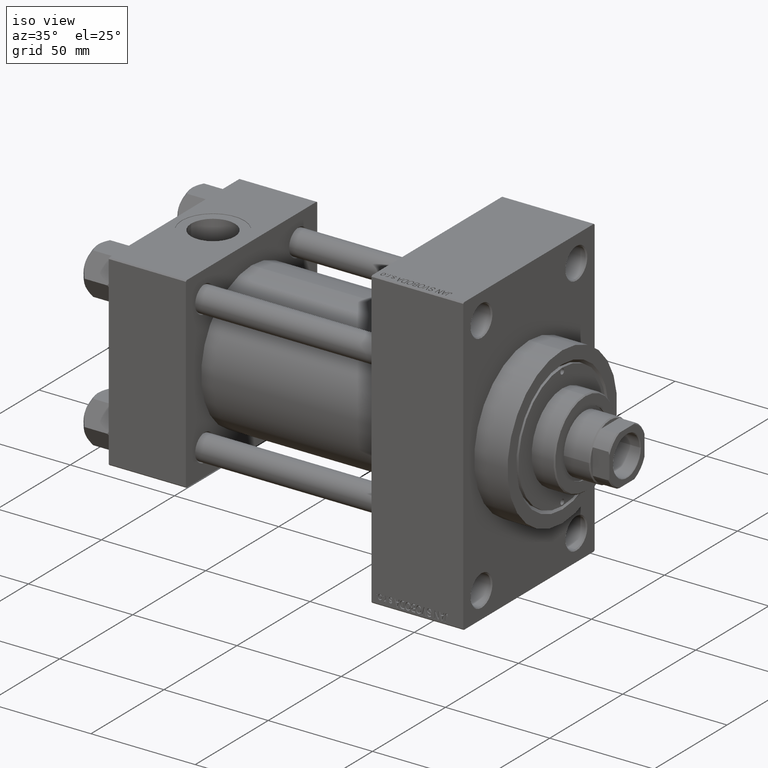
[diagram: clean part render]
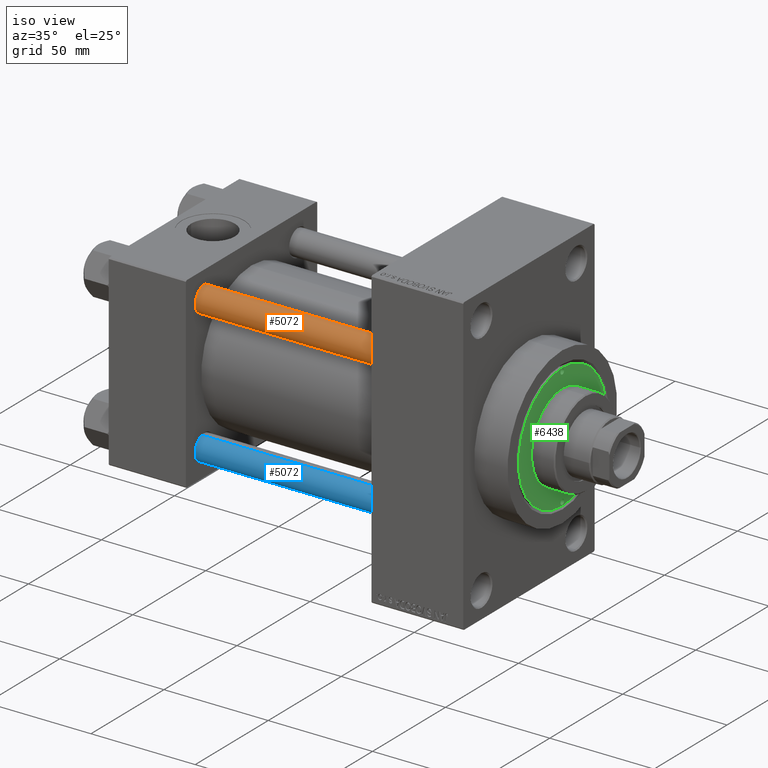
[diagram: same view with three faces highlighted in distinct colors, each labeled with its STEP entity id]
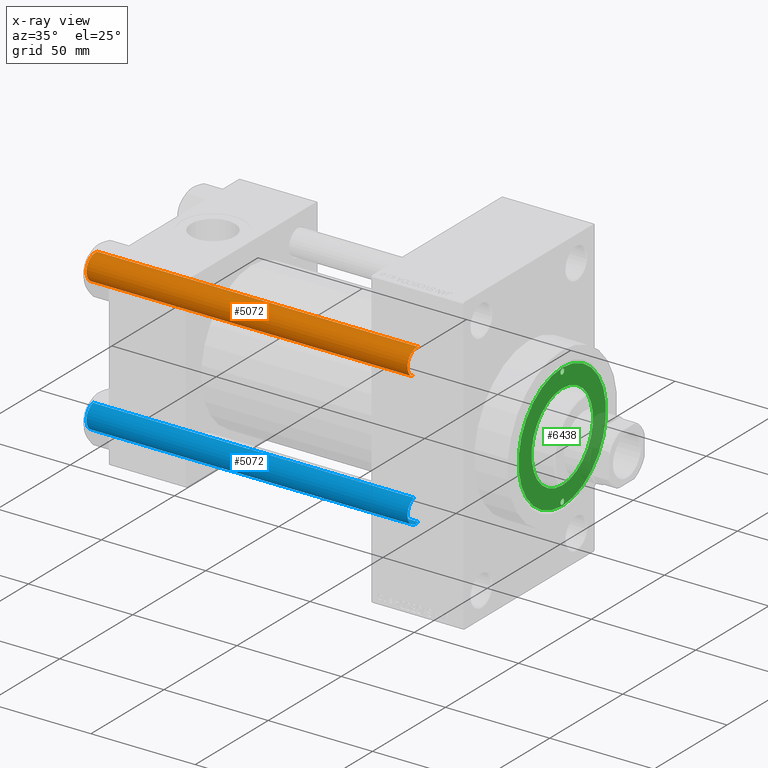
[diagram: x-ray of the same camera — body ghosted, the three highlighted faces saturated]
A machine part, iso view with three faces highlighted in distinct colors.
The next image is the same camera in x-ray (body ghosted, the three faces saturated) — at least one of them is partly hidden behind the body in this view.
Their STEP definitions:

[orange] entity #5072 — the highlighted cylindrical surface (edge-blend (fillet) strip) has radius 6 mm, axis along (1, 0, 0).
#69 = CIRCLE ( 'NONE', #36850, 6.000000000000000888 ) ;
#1149 = EDGE_CURVE ( 'NONE', #29892, #43492, #69, .T. ) ;
#2170 = DIRECTION ( 'NONE',  ( 1.000000000000000000, 0.000000000000000000, 0.000000000000000000 ) ) ;
#3232 = VECTOR ( 'NONE', #4594, 1000.000000000000000 ) ;
#4041 = LINE ( 'NONE', #22520, #36015 ) ;
#4105 = CARTESIAN_POINT ( 'NONE',  ( 0.000000000000000000, 0.000000000000000000, 155.0000000000000000 ) ) ;
#4594 = DIRECTION ( 'NONE',  ( -0.000000000000000000, -0.000000000000000000, -1.000000000000000000 ) ) ;
#5072 = ADVANCED_FACE ( 'NONE', ( #32908 ), #36980, .T. ) ;
#7988 = EDGE_CURVE ( 'NONE', #16860, #15814, #11318, .T. ) ;
#9495 = ORIENTED_EDGE ( 'NONE', *, *, #25648, .F. ) ;
#9819 = CARTESIAN_POINT ( 'NONE',  ( 0.000000000000000000, 0.000000000000000000, 154.5000000000000000 ) ) ;
#10811 = DIRECTION ( 'NONE',  ( -1.000000000000000000, 0.000000000000000000, 0.000000000000000000 ) ) ;
#11318 = CIRCLE ( 'NONE', #33557, 6.000000000000000888 ) ;
#13196 = DIRECTION ( 'NONE',  ( 0.000000000000000000, 0.000000000000000000, -1.000000000000000000 ) ) ;
#15814 = VERTEX_POINT ( 'NONE', #41828 ) ;
#16860 = VERTEX_POINT ( 'NONE', #32662 ) ;
#17356 = EDGE_CURVE ( 'NONE', #15814, #29892, #4041, .T. ) ;
#20880 = AXIS2_PLACEMENT_3D ( 'NONE', #4105, #21639, #10811 ) ;
#21639 = DIRECTION ( 'NONE',  ( -0.000000000000000000, -0.000000000000000000, -1.000000000000000000 ) ) ;
#21969 = EDGE_LOOP ( 'NONE', ( #34572, #23555, #46696, #9495 ) ) ;
#22520 = CARTESIAN_POINT ( 'NONE',  ( 6.000000000000000888, 7.347880794884120722E-16, 155.0000000000000000 ) ) ;
#23555 = ORIENTED_EDGE ( 'NONE', *, *, #17356, .T. ) ;
#25648 = EDGE_CURVE ( 'NONE', #16860, #43492, #45118, .T. ) ;
#29892 = VERTEX_POINT ( 'NONE', #32524 ) ;
#31615 = DIRECTION ( 'NONE',  ( -0.000000000000000000, -0.000000000000000000, 1.000000000000000000 ) ) ;
#32524 = CARTESIAN_POINT ( 'NONE',  ( 6.000000000000000888, 7.347880794884120722E-16, 0.4999999999999726885 ) ) ;
#32662 = CARTESIAN_POINT ( 'NONE',  ( -6.000000000000000888, 0.000000000000000000, 154.5000000000000000 ) ) ;
#32908 = FACE_OUTER_BOUND ( 'NONE', #21969, .T. ) ;
#33557 = AXIS2_PLACEMENT_3D ( 'NONE', #9819, #13196, #2170 ) ;
#34572 = ORIENTED_EDGE ( 'NONE', *, *, #7988, .T. ) ;
#34574 = CARTESIAN_POINT ( 'NONE',  ( -6.000000000000000888, 0.000000000000000000, 155.0000000000000000 ) ) ;
#36015 = VECTOR ( 'NONE', #37157, 1000.000000000000000 ) ;
#36850 = AXIS2_PLACEMENT_3D ( 'NONE', #45981, #31615, #46922 ) ;
#36980 = CYLINDRICAL_SURFACE ( 'NONE', #20880, 6.000000000000000888 ) ;
#37157 = DIRECTION ( 'NONE',  ( -0.000000000000000000, -0.000000000000000000, -1.000000000000000000 ) ) ;
#41828 = CARTESIAN_POINT ( 'NONE',  ( 6.000000000000000888, 7.347880794884120722E-16, 154.5000000000000000 ) ) ;
#43492 = VERTEX_POINT ( 'NONE', #46441 ) ;
#45118 = LINE ( 'NONE', #34574, #3232 ) ;
#45981 = CARTESIAN_POINT ( 'NONE',  ( 0.000000000000000000, 0.000000000000000000, 0.4999999999999726885 ) ) ;
#46441 = CARTESIAN_POINT ( 'NONE',  ( -6.000000000000000888, 0.000000000000000000, 0.4999999999999726885 ) ) ;
#46696 = ORIENTED_EDGE ( 'NONE', *, *, #1149, .T. ) ;
#46922 = DIRECTION ( 'NONE',  ( 1.000000000000000000, 0.000000000000000000, 0.000000000000000000 ) ) ;

[blue] entity #5072 — the highlighted cylindrical surface (edge-blend (fillet) strip) has radius 6 mm, axis along (-1, 0, 0).
#69 = CIRCLE ( 'NONE', #36850, 6.000000000000000888 ) ;
#1149 = EDGE_CURVE ( 'NONE', #29892, #43492, #69, .T. ) ;
#2170 = DIRECTION ( 'NONE',  ( 1.000000000000000000, 0.000000000000000000, 0.000000000000000000 ) ) ;
#3232 = VECTOR ( 'NONE', #4594, 1000.000000000000000 ) ;
#4041 = LINE ( 'NONE', #22520, #36015 ) ;
#4105 = CARTESIAN_POINT ( 'NONE',  ( 0.000000000000000000, 0.000000000000000000, 155.0000000000000000 ) ) ;
#4594 = DIRECTION ( 'NONE',  ( -0.000000000000000000, -0.000000000000000000, -1.000000000000000000 ) ) ;
#5072 = ADVANCED_FACE ( 'NONE', ( #32908 ), #36980, .T. ) ;
#7988 = EDGE_CURVE ( 'NONE', #16860, #15814, #11318, .T. ) ;
#9495 = ORIENTED_EDGE ( 'NONE', *, *, #25648, .F. ) ;
#9819 = CARTESIAN_POINT ( 'NONE',  ( 0.000000000000000000, 0.000000000000000000, 154.5000000000000000 ) ) ;
#10811 = DIRECTION ( 'NONE',  ( -1.000000000000000000, 0.000000000000000000, 0.000000000000000000 ) ) ;
#11318 = CIRCLE ( 'NONE', #33557, 6.000000000000000888 ) ;
#13196 = DIRECTION ( 'NONE',  ( 0.000000000000000000, 0.000000000000000000, -1.000000000000000000 ) ) ;
#15814 = VERTEX_POINT ( 'NONE', #41828 ) ;
#16860 = VERTEX_POINT ( 'NONE', #32662 ) ;
#17356 = EDGE_CURVE ( 'NONE', #15814, #29892, #4041, .T. ) ;
#20880 = AXIS2_PLACEMENT_3D ( 'NONE', #4105, #21639, #10811 ) ;
#21639 = DIRECTION ( 'NONE',  ( -0.000000000000000000, -0.000000000000000000, -1.000000000000000000 ) ) ;
#21969 = EDGE_LOOP ( 'NONE', ( #34572, #23555, #46696, #9495 ) ) ;
#22520 = CARTESIAN_POINT ( 'NONE',  ( 6.000000000000000888, 7.347880794884120722E-16, 155.0000000000000000 ) ) ;
#23555 = ORIENTED_EDGE ( 'NONE', *, *, #17356, .T. ) ;
#25648 = EDGE_CURVE ( 'NONE', #16860, #43492, #45118, .T. ) ;
#29892 = VERTEX_POINT ( 'NONE', #32524 ) ;
#31615 = DIRECTION ( 'NONE',  ( -0.000000000000000000, -0.000000000000000000, 1.000000000000000000 ) ) ;
#32524 = CARTESIAN_POINT ( 'NONE',  ( 6.000000000000000888, 7.347880794884120722E-16, 0.4999999999999726885 ) ) ;
#32662 = CARTESIAN_POINT ( 'NONE',  ( -6.000000000000000888, 0.000000000000000000, 154.5000000000000000 ) ) ;
#32908 = FACE_OUTER_BOUND ( 'NONE', #21969, .T. ) ;
#33557 = AXIS2_PLACEMENT_3D ( 'NONE', #9819, #13196, #2170 ) ;
#34572 = ORIENTED_EDGE ( 'NONE', *, *, #7988, .T. ) ;
#34574 = CARTESIAN_POINT ( 'NONE',  ( -6.000000000000000888, 0.000000000000000000, 155.0000000000000000 ) ) ;
#36015 = VECTOR ( 'NONE', #37157, 1000.000000000000000 ) ;
#36850 = AXIS2_PLACEMENT_3D ( 'NONE', #45981, #31615, #46922 ) ;
#36980 = CYLINDRICAL_SURFACE ( 'NONE', #20880, 6.000000000000000888 ) ;
#37157 = DIRECTION ( 'NONE',  ( -0.000000000000000000, -0.000000000000000000, -1.000000000000000000 ) ) ;
#41828 = CARTESIAN_POINT ( 'NONE',  ( 6.000000000000000888, 7.347880794884120722E-16, 154.5000000000000000 ) ) ;
#43492 = VERTEX_POINT ( 'NONE', #46441 ) ;
#45118 = LINE ( 'NONE', #34574, #3232 ) ;
#45981 = CARTESIAN_POINT ( 'NONE',  ( 0.000000000000000000, 0.000000000000000000, 0.4999999999999726885 ) ) ;
#46441 = CARTESIAN_POINT ( 'NONE',  ( -6.000000000000000888, 0.000000000000000000, 0.4999999999999726885 ) ) ;
#46696 = ORIENTED_EDGE ( 'NONE', *, *, #1149, .T. ) ;
#46922 = DIRECTION ( 'NONE',  ( 1.000000000000000000, 0.000000000000000000, 0.000000000000000000 ) ) ;

[green] entity #6438 — the highlighted planar face has unit normal (1, -0, -0).
#156 = DIRECTION ( 'NONE',  ( 1.000000000000000000, 0.000000000000000000, 0.000000000000000000 ) ) ;
#437 = EDGE_CURVE ( 'NONE', #1958, #18422, #3068, .T. ) ;
#604 = CARTESIAN_POINT ( 'NONE',  ( 0.000000000000000000, 0.000000000000000000, 43.25999999999999801 ) ) ;
#1699 = EDGE_LOOP ( 'NONE', ( #46610, #40200 ) ) ;
#1958 = VERTEX_POINT ( 'NONE', #3647 ) ;
#2025 = EDGE_CURVE ( 'NONE', #20109, #38394, #18491, .T. ) ;
#2031 = DIRECTION ( 'NONE',  ( 1.000000000000000000, 0.000000000000000000, 0.000000000000000000 ) ) ;
#2905 = CARTESIAN_POINT ( 'NONE',  ( 29.50000000000000000, 0.000000000000000000, 43.25999999999999801 ) ) ;
#3068 = CIRCLE ( 'NONE', #9963, 1.249999999999997558 ) ;
#3569 = VERTEX_POINT ( 'NONE', #22733 ) ;
#3605 = EDGE_LOOP ( 'NONE', ( #41169, #35867 ) ) ;
#3647 = CARTESIAN_POINT ( 'NONE',  ( -29.50000000000000000, 1.530808498934188612E-16, 43.25999999999999801 ) ) ;
#3740 = CARTESIAN_POINT ( 'NONE',  ( 28.25000000000000000, 0.000000000000000000, 43.25999999999999801 ) ) ;
#5181 = CIRCLE ( 'NONE', #11313, 1.249999999999997558 ) ;
#6438 = ADVANCED_FACE ( 'NONE', ( #14333, #11191, #32091, #7116 ), #18178, .T. ) ;
#7116 = FACE_OUTER_BOUND ( 'NONE', #14990, .T. ) ;
#7915 = AXIS2_PLACEMENT_3D ( 'NONE', #17196, #9261, #9972 ) ;
#8051 = CIRCLE ( 'NONE', #19553, 30.00000000000000000 ) ;
#8191 = DIRECTION ( 'NONE',  ( -0.000000000000000000, -0.000000000000000000, 1.000000000000000000 ) ) ;
#9261 = DIRECTION ( 'NONE',  ( -0.000000000000000000, -0.000000000000000000, 1.000000000000000000 ) ) ;
#9301 = EDGE_CURVE ( 'NONE', #38268, #3569, #27346, .T. ) ;
#9910 = CARTESIAN_POINT ( 'NONE',  ( 0.000000000000000000, 0.000000000000000000, 43.25999999999999801 ) ) ;
#9963 = AXIS2_PLACEMENT_3D ( 'NONE', #37014, #8191, #33418 ) ;
#9972 = DIRECTION ( 'NONE',  ( 1.000000000000000000, 0.000000000000000000, 0.000000000000000000 ) ) ;
#10708 = CARTESIAN_POINT ( 'NONE',  ( 0.000000000000000000, 0.000000000000000000, 43.25999999999999801 ) ) ;
#10896 = DIRECTION ( 'NONE',  ( 1.000000000000000000, 0.000000000000000000, 0.000000000000000000 ) ) ;
#10953 = DIRECTION ( 'NONE',  ( 1.000000000000000000, 0.000000000000000000, -0.000000000000000000 ) ) ;
#11074 = DIRECTION ( 'NONE',  ( 1.000000000000000000, 0.000000000000000000, 0.000000000000000000 ) ) ;
#11191 = FACE_BOUND ( 'NONE', #1699, .T. ) ;
#11313 = AXIS2_PLACEMENT_3D ( 'NONE', #32240, #46840, #14009 ) ;
#11506 = EDGE_CURVE ( 'NONE', #18422, #1958, #5181, .T. ) ;
#12824 = AXIS2_PLACEMENT_3D ( 'NONE', #10708, #25846, #10953 ) ;
#12908 = VERTEX_POINT ( 'NONE', #2905 ) ;
#13221 = CARTESIAN_POINT ( 'NONE',  ( 27.00000000000000355, 1.530808498934188612E-16, 43.25999999999999801 ) ) ;
#14009 = DIRECTION ( 'NONE',  ( 1.000000000000000000, 0.000000000000000000, 0.000000000000000000 ) ) ;
#14023 = CIRCLE ( 'NONE', #26299, 21.00000000000000000 ) ;
#14333 = FACE_BOUND ( 'NONE', #33476, .T. ) ;
#14990 = EDGE_LOOP ( 'NONE', ( #31566, #26928 ) ) ;
#15223 = DIRECTION ( 'NONE',  ( 0.000000000000000000, 0.000000000000000000, 1.000000000000000000 ) ) ;
#17196 = CARTESIAN_POINT ( 'NONE',  ( 28.25000000000000000, 0.000000000000000000, 43.25999999999999801 ) ) ;
#18178 = PLANE ( 'NONE',  #12824 ) ;
#18310 = DIRECTION ( 'NONE',  ( 0.000000000000000000, 0.000000000000000000, 1.000000000000000000 ) ) ;
#18422 = VERTEX_POINT ( 'NONE', #45973 ) ;
#18491 = CIRCLE ( 'NONE', #36088, 21.00000000000000000 ) ;
#19553 = AXIS2_PLACEMENT_3D ( 'NONE', #9910, #46834, #2031 ) ;
#20109 = VERTEX_POINT ( 'NONE', #28758 ) ;
#21894 = CARTESIAN_POINT ( 'NONE',  ( 0.000000000000000000, 0.000000000000000000, 43.25999999999999801 ) ) ;
#22733 = CARTESIAN_POINT ( 'NONE',  ( 30.00000000000000000, 3.673940397442059178E-15, 43.25999999999999801 ) ) ;
#24690 = EDGE_CURVE ( 'NONE', #30363, #12908, #29263, .T. ) ;
#24894 = ORIENTED_EDGE ( 'NONE', *, *, #11506, .F. ) ;
#25846 = DIRECTION ( 'NONE',  ( 0.000000000000000000, 0.000000000000000000, 1.000000000000000000 ) ) ;
#26299 = AXIS2_PLACEMENT_3D ( 'NONE', #604, #15223, #10896 ) ;
#26928 = ORIENTED_EDGE ( 'NONE', *, *, #47359, .T. ) ;
#27346 = CIRCLE ( 'NONE', #35021, 30.00000000000000000 ) ;
#28290 = EDGE_CURVE ( 'NONE', #38394, #20109, #14023, .T. ) ;
#28616 = CIRCLE ( 'NONE', #7915, 1.249999999999997558 ) ;
#28758 = CARTESIAN_POINT ( 'NONE',  ( 21.00000000000000000, 2.571758278209441661E-15, 43.25999999999999801 ) ) ;
#29263 = CIRCLE ( 'NONE', #36148, 1.249999999999997558 ) ;
#29808 = CARTESIAN_POINT ( 'NONE',  ( 0.000000000000000000, 0.000000000000000000, 43.25999999999999801 ) ) ;
#30363 = VERTEX_POINT ( 'NONE', #13221 ) ;
#31566 = ORIENTED_EDGE ( 'NONE', *, *, #9301, .T. ) ;
#32091 = FACE_BOUND ( 'NONE', #3605, .T. ) ;
#32240 = CARTESIAN_POINT ( 'NONE',  ( -28.25000000000000000, 0.000000000000000000, 43.25999999999999801 ) ) ;
#33015 = DIRECTION ( 'NONE',  ( -0.000000000000000000, -0.000000000000000000, 1.000000000000000000 ) ) ;
#33418 = DIRECTION ( 'NONE',  ( 1.000000000000000000, 0.000000000000000000, 0.000000000000000000 ) ) ;
#33476 = EDGE_LOOP ( 'NONE', ( #24894, #35768 ) ) ;
#35021 = AXIS2_PLACEMENT_3D ( 'NONE', #29808, #18310, #36541 ) ;
#35768 = ORIENTED_EDGE ( 'NONE', *, *, #437, .F. ) ;
#35867 = ORIENTED_EDGE ( 'NONE', *, *, #2025, .F. ) ;
#36088 = AXIS2_PLACEMENT_3D ( 'NONE', #21894, #43933, #11074 ) ;
#36148 = AXIS2_PLACEMENT_3D ( 'NONE', #3740, #33015, #156 ) ;
#36541 = DIRECTION ( 'NONE',  ( 1.000000000000000000, 0.000000000000000000, 0.000000000000000000 ) ) ;
#37014 = CARTESIAN_POINT ( 'NONE',  ( -28.25000000000000000, 0.000000000000000000, 43.25999999999999801 ) ) ;
#38268 = VERTEX_POINT ( 'NONE', #42130 ) ;
#38394 = VERTEX_POINT ( 'NONE', #42842 ) ;
#40200 = ORIENTED_EDGE ( 'NONE', *, *, #24690, .F. ) ;
#40492 = EDGE_CURVE ( 'NONE', #12908, #30363, #28616, .T. ) ;
#41169 = ORIENTED_EDGE ( 'NONE', *, *, #28290, .F. ) ;
#42130 = CARTESIAN_POINT ( 'NONE',  ( -30.00000000000000000, 0.000000000000000000, 43.25999999999999801 ) ) ;
#42842 = CARTESIAN_POINT ( 'NONE',  ( -21.00000000000000000, 0.000000000000000000, 43.25999999999999801 ) ) ;
#43933 = DIRECTION ( 'NONE',  ( 0.000000000000000000, 0.000000000000000000, 1.000000000000000000 ) ) ;
#45973 = CARTESIAN_POINT ( 'NONE',  ( -27.00000000000000355, 0.000000000000000000, 43.25999999999999801 ) ) ;
#46610 = ORIENTED_EDGE ( 'NONE', *, *, #40492, .F. ) ;
#46834 = DIRECTION ( 'NONE',  ( 0.000000000000000000, 0.000000000000000000, 1.000000000000000000 ) ) ;
#46840 = DIRECTION ( 'NONE',  ( -0.000000000000000000, -0.000000000000000000, 1.000000000000000000 ) ) ;
#47359 = EDGE_CURVE ( 'NONE', #3569, #38268, #8051, .T. ) ;